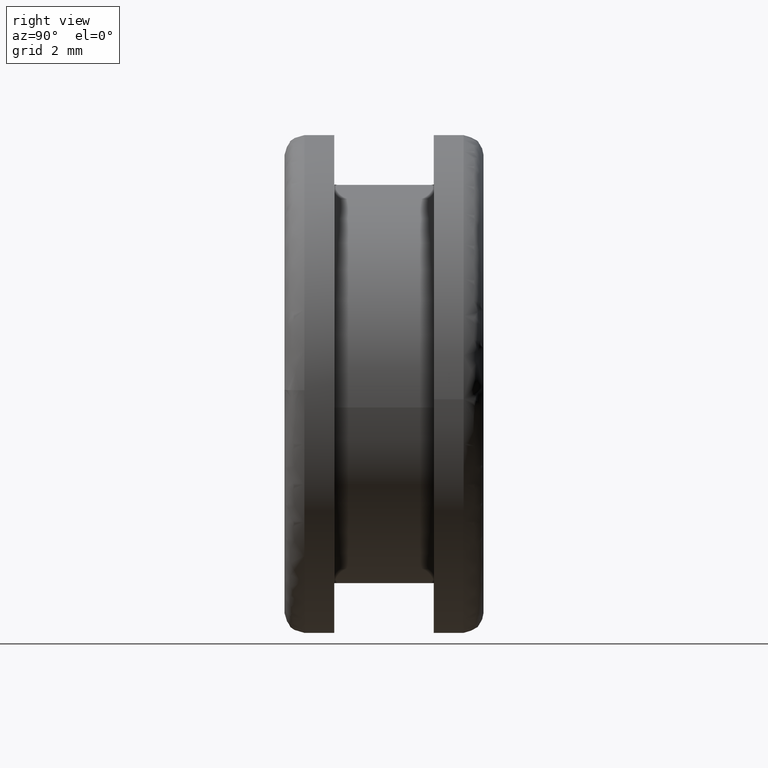
[diagram: clean part render]
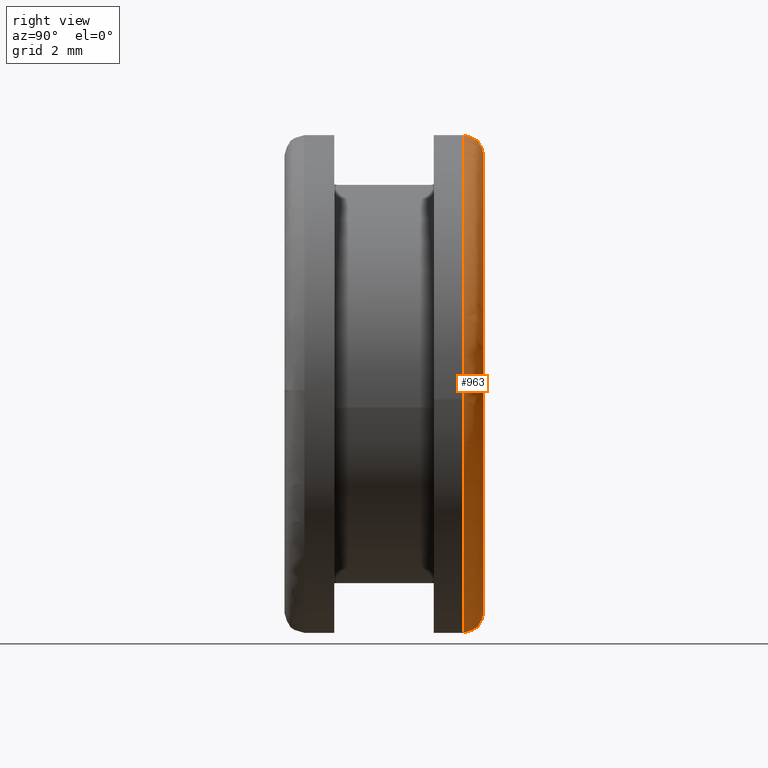
[diagram: same view with one face highlighted and labeled with its STEP entity id]
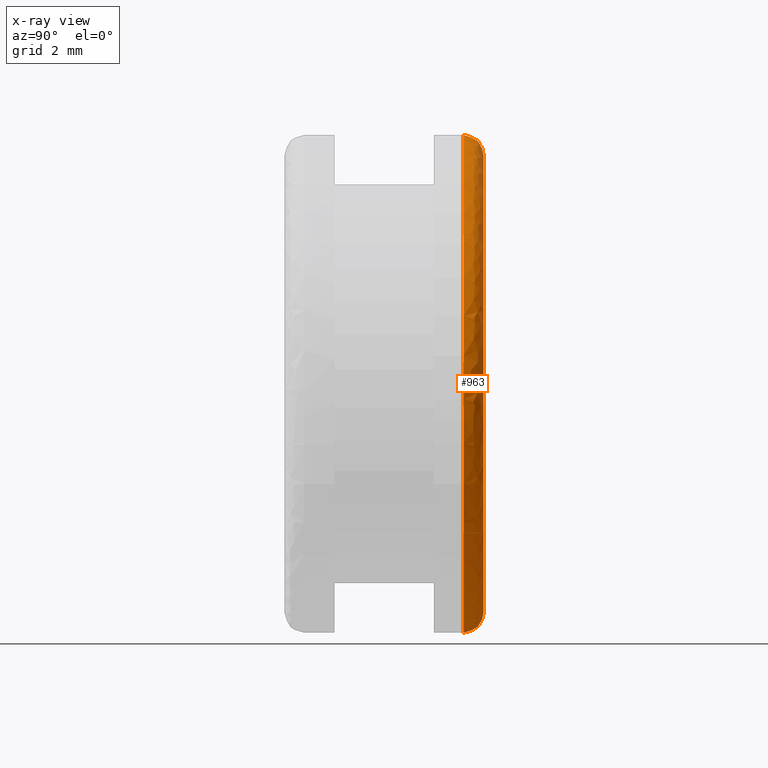
[diagram: x-ray of the same camera — body ghosted, the highlighted face saturated]
A machine part, right view. The second image highlights one B-rep face of the part: STEP entity #963.
The next image is the same camera in x-ray: the body ghosted, the highlighted face saturated — about 0% of this face is hidden behind the body in this view.
In plain terms, the highlighted face is a freeform B-spline surface patch.
Its self-contained STEP definition (entity closure, byte-faithful):
#489=CARTESIAN_POINT('',(2.637130704092848,5.400000000000000,7.021078382236700));
#490=VERTEX_POINT('',#489);
#496=CARTESIAN_POINT('',(0.0,5.400000000000000,7.500000000000000));
#497=VERTEX_POINT('',#496);
#498=CARTESIAN_POINT('',(2.637130704092848,5.400000000000000,7.021078382236701));
#499=CARTESIAN_POINT('',(1.362053131322029,5.400000000000000,7.500000000000000));
#500=CARTESIAN_POINT('',(0.0,5.400000000000000,7.500000000000000));
#508=(BOUNDED_CURVE()B_SPLINE_CURVE(2,(#498,#499,#500),.UNSPECIFIED.,.F.,.U.)B_SPLINE_CURVE_WITH_KNOTS((3,3),(0.440284263221162,0.500000000000000),.UNSPECIFIED.)CURVE()GEOMETRIC_REPRESENTATION_ITEM()RATIONAL_B_SPLINE_CURVE((0.893499667616368,0.930038662564118,1.0))REPRESENTATION_ITEM(''));
#509=EDGE_CURVE('',#490,#497,#508,.T.);
#511=CARTESIAN_POINT('',(-7.499999999999998,5.400000000010016,4.329470E-016));
#512=VERTEX_POINT('',#511);
#513=CARTESIAN_POINT('',(0.0,5.400000000000000,7.500000000000000));
#514=CARTESIAN_POINT('',(-7.499999999999963,5.400000000000000,7.500000000000000));
#515=CARTESIAN_POINT('',(-7.499999999999998,5.400000000010016,4.329470E-016));
#523=(BOUNDED_CURVE()B_SPLINE_CURVE(2,(#513,#514,#515),.UNSPECIFIED.,.F.,.U.)B_SPLINE_CURVE_WITH_KNOTS((3,3),(0.500000000000000,0.749999999999999),.UNSPECIFIED.)CURVE()GEOMETRIC_REPRESENTATION_ITEM()RATIONAL_B_SPLINE_CURVE((1.0,0.707106781186548,0.999999999999998))REPRESENTATION_ITEM(''));
#524=EDGE_CURVE('',#497,#512,#523,.T.);
#526=CARTESIAN_POINT('',(-2.649764749950935,5.400000000009606,-7.016320030465931));
#527=VERTEX_POINT('',#526);
#541=CARTESIAN_POINT('',(0.0,5.400000000000000,-7.500000000000000));
#542=VERTEX_POINT('',#541);
#543=CARTESIAN_POINT('',(-2.649764749950935,5.400000000009607,-7.016320030465931));
#544=CARTESIAN_POINT('',(-1.369027107622649,5.400000000000000,-7.500000000000000));
#545=CARTESIAN_POINT('',(0.0,5.400000000000000,-7.500000000000000));
#553=(BOUNDED_CURVE()B_SPLINE_CURVE(2,(#543,#544,#545),.UNSPECIFIED.,.F.,.U.)B_SPLINE_CURVE_WITH_KNOTS((3,3),(0.939999999999992,1.0),.UNSPECIFIED.)CURVE()GEOMETRIC_REPRESENTATION_ITEM()RATIONAL_B_SPLINE_CURVE((0.893152553776842,0.929705627484762,1.0))REPRESENTATION_ITEM(''));
#554=EDGE_CURVE('',#527,#542,#553,.T.);
#556=CARTESIAN_POINT('',(7.486011298833336,5.400000000000000,-0.457858967056126));
#557=VERTEX_POINT('',#556);
#558=CARTESIAN_POINT('',(0.0,5.400000000000000,-7.500000000000000));
#559=CARTESIAN_POINT('',(7.055300297943345,5.400000000000000,-7.499999999999999));
#560=CARTESIAN_POINT('',(7.486011298833336,5.400000000000000,-0.457858967056127));
#568=(BOUNDED_CURVE()B_SPLINE_CURVE(2,(#558,#559,#560),.UNSPECIFIED.,.F.,.U.)B_SPLINE_CURVE_WITH_KNOTS((3,3),(0.0,0.239333079319513),.UNSPECIFIED.)CURVE()GEOMETRIC_REPRESENTATION_ITEM()RATIONAL_B_SPLINE_CURVE((1.0,0.719603856118290,0.976072292592794))REPRESENTATION_ITEM(''));
#569=EDGE_CURVE('',#542,#557,#568,.T.);
#641=CARTESIAN_POINT('',(7.486011298833336,5.400000000000000,-0.457858967056127));
#642=CARTESIAN_POINT('',(7.500000000000001,5.400000000000000,-0.229143177890749));
#643=CARTESIAN_POINT('',(7.500000000000000,5.400000000000000,-1.928755E-016));
#644=CARTESIAN_POINT('',(7.500000000000001,5.400000000000000,5.194575211062564));
#645=CARTESIAN_POINT('',(2.637130704092848,5.400000000000000,7.021078382236701));
#653=(BOUNDED_CURVE()B_SPLINE_CURVE(2,(#641,#642,#643,#644,#645),.UNSPECIFIED.,.F.,.U.)B_SPLINE_CURVE_WITH_KNOTS((3,2,3),(0.239333079319513,0.250000000000000,0.440284263221162),.UNSPECIFIED.)CURVE()GEOMETRIC_REPRESENTATION_ITEM()RATIONAL_B_SPLINE_CURVE((0.976072292592794,0.987502925068257,1.0,0.777068118622430,0.893499667616368))REPRESENTATION_ITEM(''));
#654=EDGE_CURVE('',#557,#490,#653,.T.);
#846=CARTESIAN_POINT('',(-2.423082480186324,5.998555395918171,-6.416087368329027));
#847=CARTESIAN_POINT('',(-1.251909475904139,5.998555395918172,-6.858389448246375));
#848=CARTESIAN_POINT('',(-8.398827E-016,5.998555395918170,-6.858389448246373));
#849=CARTESIAN_POINT('',(6.858389448246374,5.998555395918173,-6.858389448246377));
#850=CARTESIAN_POINT('',(6.858389448246373,5.998555395918170,-1.259824E-015));
#851=CARTESIAN_POINT('',(6.858389448246377,5.998555395918173,6.858389448246374));
#852=CARTESIAN_POINT('',(1.679765E-015,5.998555395918170,6.858389448246373));
#853=CARTESIAN_POINT('',(-6.858389448246374,5.998555395918173,6.858389448246379));
#854=CARTESIAN_POINT('',(-6.858389448246373,5.998555395918170,2.099707E-015));
#855=CARTESIAN_POINT('',(-2.666243986392541,6.046401644708442,-7.059955450076542));
#856=CARTESIAN_POINT('',(-1.377541267757661,6.046401644708443,-7.546643489130770));
#857=CARTESIAN_POINT('',(-9.241668E-016,6.046401644708443,-7.546643489130771));
#858=CARTESIAN_POINT('',(7.546643489130769,6.046401644708443,-7.546643489130772));
#859=CARTESIAN_POINT('',(7.546643489130771,6.046401644708443,-1.386250E-015));
#860=CARTESIAN_POINT('',(7.546643489130774,6.046401644708443,7.546643489130769));
#861=CARTESIAN_POINT('',(1.848334E-015,6.046401644708443,7.546643489130771));
#862=CARTESIAN_POINT('',(-7.546643489130769,6.046401644708443,7.546643489130774));
#863=CARTESIAN_POINT('',(-7.546643489130771,6.046401644708443,2.310417E-015));
#864=CARTESIAN_POINT('',(-2.649248854462027,5.358165549802428,-7.014953989253767));
#865=CARTESIAN_POINT('',(-1.368760565127013,5.358165549802428,-7.498539788799929));
#866=CARTESIAN_POINT('',(-9.182759E-016,5.358165549802428,-7.498539788799929));
#867=CARTESIAN_POINT('',(7.498539788799929,5.358165549802429,-7.498539788799930));
#868=CARTESIAN_POINT('',(7.498539788799929,5.358165549802428,-1.377414E-015));
#869=CARTESIAN_POINT('',(7.498539788799930,5.358165549802429,7.498539788799929));
#870=CARTESIAN_POINT('',(1.836552E-015,5.358165549802428,7.498539788799929));
#871=CARTESIAN_POINT('',(-7.498539788799928,5.358165549802429,7.498539788799930));
#872=CARTESIAN_POINT('',(-7.498539788799929,5.358165549802428,2.295690E-015));
#880=(BOUNDED_SURFACE()B_SPLINE_SURFACE(2,2,((#846,#855,#864),(#847,#856,#865),(#848,#857,#866),(#849,#858,#867),(#850,#859,#868),(#851,#860,#869),(#852,#861,#870),(#853,#862,#871),(#854,#863,#872)),.UNSPECIFIED.,.F.,.F.,.U.)B_SPLINE_SURFACE_WITH_KNOTS((3,2,2,2,3),(3,3),(0.0,2.981757003374610,15.405744517435471,27.829732031496331,40.253719545557203),(0.0,1.093422372600805),.UNSPECIFIED.)GEOMETRIC_REPRESENTATION_ITEM()RATIONAL_B_SPLINE_SURFACE(((0.818098057146649,0.535367147731518,0.813566319635690),(0.851579457895863,0.557277531046301,0.846862254940549),(0.915966767028967,0.599412883574731,0.910892899757585),(0.647686312307701,0.423848914706275,0.644098546353266),(0.915966767028967,0.599412883574731,0.910892899757585),(0.647686312307701,0.423848914706275,0.644098546353266),(0.915966767028967,0.599412883574731,0.910892899757585),(0.647686312307701,0.423848914706275,0.644098546353266),(0.915966767028967,0.599412883574731,0.910892899757585)))REPRESENTATION_ITEM('')SURFACE());
#881=ORIENTED_EDGE('',*,*,#554,.F.);
#882=CARTESIAN_POINT('',(-2.437783570079331,6.0,-6.455014428335814));
#883=VERTEX_POINT('',#882);
#884=CARTESIAN_POINT('',(-2.437783570079331,6.0,-6.455014428335814));
#885=CARTESIAN_POINT('',(-2.649764749943964,5.999999999337350,-7.016320030448028));
#886=CARTESIAN_POINT('',(-2.649764749950935,5.400000000009607,-7.016320030465931));
#894=(BOUNDED_CURVE()B_SPLINE_CURVE(2,(#884,#885,#886),.UNSPECIFIED.,.F.,.U.)B_SPLINE_CURVE_WITH_KNOTS((3,3),(-1.736413119929140,-0.276558718048196),.UNSPECIFIED.)CURVE()GEOMETRIC_REPRESENTATION_ITEM()RATIONAL_B_SPLINE_CURVE((0.793575340545270,0.559683979712872,0.789455369356668))REPRESENTATION_ITEM(''));
#895=EDGE_CURVE('',#883,#527,#894,.T.);
#896=ORIENTED_EDGE('',*,*,#895,.F.);
#897=CARTESIAN_POINT('',(0.0,6.0,-6.900000000000000));
#898=VERTEX_POINT('',#897);
#899=CARTESIAN_POINT('',(-2.437783570079330,6.0,-6.455014428335814));
#900=CARTESIAN_POINT('',(-1.259504939021024,5.999999999999999,-6.899999999999999));
#901=CARTESIAN_POINT('',(0.0,6.0,-6.900000000000000));
#909=(BOUNDED_CURVE()B_SPLINE_CURVE(2,(#899,#900,#901),.UNSPECIFIED.,.F.,.U.)B_SPLINE_CURVE_WITH_KNOTS((3,3),(0.939999999999629,1.0),.UNSPECIFIED.)CURVE()GEOMETRIC_REPRESENTATION_ITEM()RATIONAL_B_SPLINE_CURVE((0.893152553776401,0.929705627484337,1.0))REPRESENTATION_ITEM(''));
#910=EDGE_CURVE('',#883,#898,#909,.T.);
#911=ORIENTED_EDGE('',*,*,#910,.T.);
#912=CARTESIAN_POINT('',(0.0,6.0,6.900000000000000));
#913=VERTEX_POINT('',#912);
#914=CARTESIAN_POINT('',(0.0,6.0,-6.900000000000000));
#915=CARTESIAN_POINT('',(6.900000000000000,6.0,-6.900000000000000));
#916=CARTESIAN_POINT('',(6.900000000000000,6.0,-1.928755E-016));
#917=CARTESIAN_POINT('',(6.900000000000000,6.0,6.900000000000000));
#918=CARTESIAN_POINT('',(0.0,6.0,6.900000000000000));
#926=(BOUNDED_CURVE()B_SPLINE_CURVE(2,(#914,#915,#916,#917,#918),.UNSPECIFIED.,.F.,.U.)B_SPLINE_CURVE_WITH_KNOTS((3,2,3),(0.0,0.250000000000000,0.500000000000000),.UNSPECIFIED.)CURVE()GEOMETRIC_REPRESENTATION_ITEM()RATIONAL_B_SPLINE_CURVE((1.0,0.707106781186548,1.0,0.707106781186548,1.0))REPRESENTATION_ITEM(''));
#927=EDGE_CURVE('',#898,#913,#926,.T.);
#928=ORIENTED_EDGE('',*,*,#927,.T.);
#929=CARTESIAN_POINT('',(-6.900000000015655,6.0,6.587210E-017));
#930=VERTEX_POINT('',#929);
#931=CARTESIAN_POINT('',(0.0,6.0,6.900000000000000));
#932=CARTESIAN_POINT('',(-6.899999999999965,6.000000000000001,6.900000000000000));
#933=CARTESIAN_POINT('',(-6.900000000015655,5.999999999999999,6.587210E-017));
#941=(BOUNDED_CURVE()B_SPLINE_CURVE(2,(#931,#932,#933),.UNSPECIFIED.,.F.,.U.)B_SPLINE_CURVE_WITH_KNOTS((3,3),(0.500000000000000,0.749999999999999),.UNSPECIFIED.)CURVE()GEOMETRIC_REPRESENTATION_ITEM()RATIONAL_B_SPLINE_CURVE((1.0,0.707106781186549,0.999999999999998))REPRESENTATION_ITEM(''));
#942=EDGE_CURVE('',#913,#930,#941,.T.);
#943=ORIENTED_EDGE('',*,*,#942,.T.);
#944=CARTESIAN_POINT('',(-6.900000000015655,6.0,6.587210E-017));
#945=CARTESIAN_POINT('',(-7.499999999979969,5.999999999968686,7.040881E-016));
#946=CARTESIAN_POINT('',(-7.499999999999997,5.400000000010016,4.329470E-016));
#954=(BOUNDED_CURVE()B_SPLINE_CURVE(2,(#944,#945,#946),.UNSPECIFIED.,.F.,.U.)B_SPLINE_CURVE_WITH_KNOTS((3,3),(-1.736413121018155,-0.276558718049601),.UNSPECIFIED.)CURVE()GEOMETRIC_REPRESENTATION_ITEM()RATIONAL_B_SPLINE_CURVE((0.888510409043171,0.626638727253224,0.883897567126551))REPRESENTATION_ITEM(''));
#955=EDGE_CURVE('',#930,#512,#954,.T.);
#956=ORIENTED_EDGE('',*,*,#955,.T.);
#957=ORIENTED_EDGE('',*,*,#524,.F.);
#958=ORIENTED_EDGE('',*,*,#509,.F.);
#959=ORIENTED_EDGE('',*,*,#654,.F.);
#960=ORIENTED_EDGE('',*,*,#569,.F.);
#961=EDGE_LOOP('',(#881,#896,#911,#928,#943,#956,#957,#958,#959,#960));
#962=FACE_OUTER_BOUND('',#961,.T.);
#963=ADVANCED_FACE('',(#962),#880,.T.);